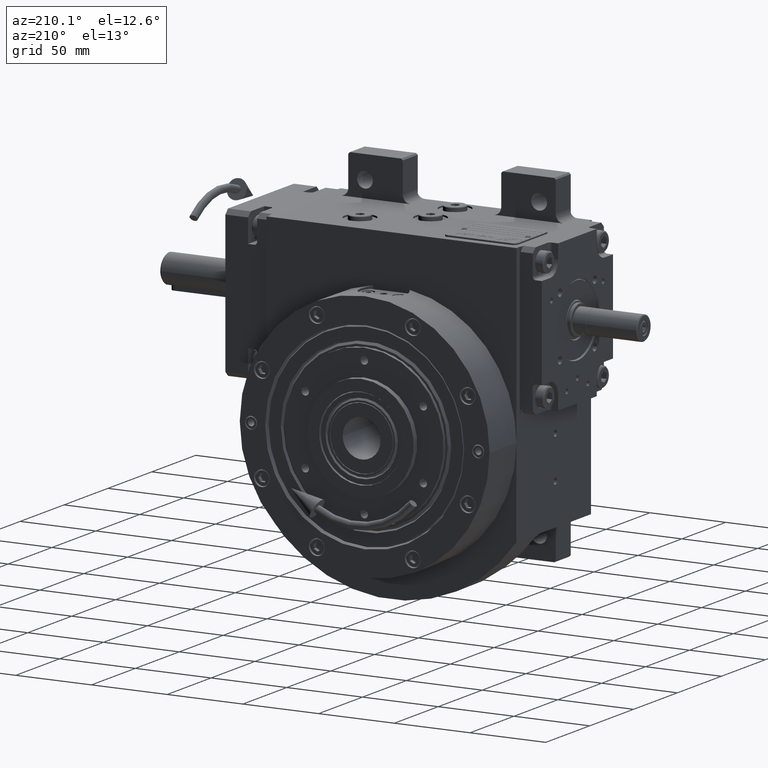
[diagram: clean part render]
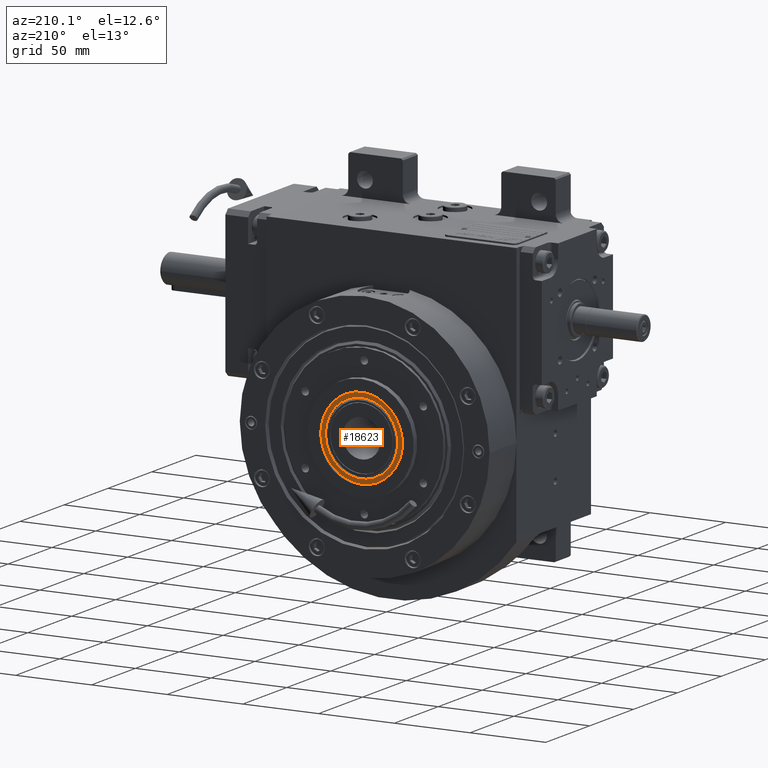
[diagram: same view with one face highlighted and labeled with its STEP entity id]
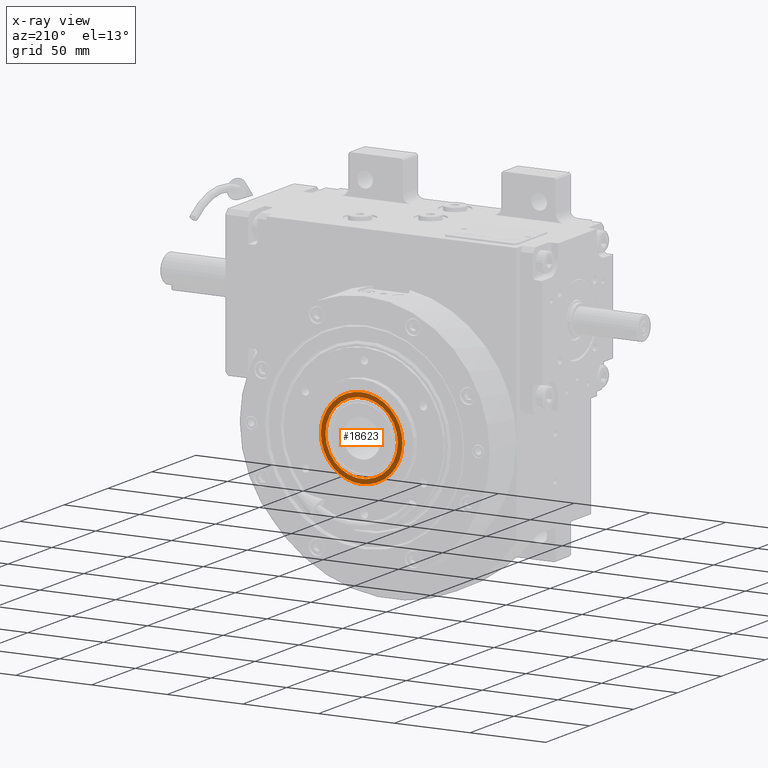
[diagram: x-ray of the same camera — body ghosted, the highlighted face saturated]
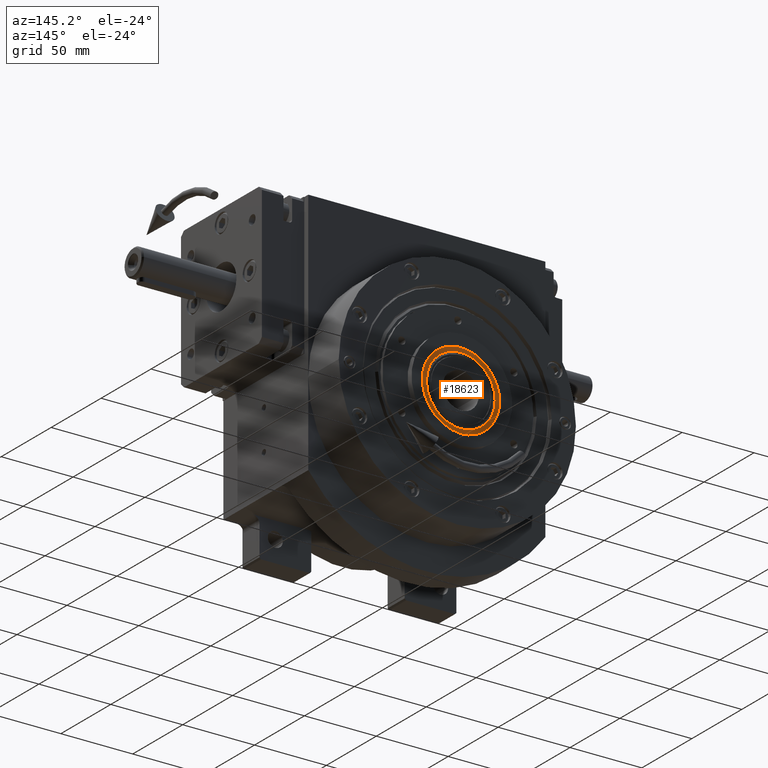
[diagram: same view with one face highlighted and labeled with its STEP entity id]
A machine part, auxiliary view. The second image highlights one B-rep face of the part: STEP entity #18623.
The next image is the same camera in x-ray: the body ghosted, the highlighted face saturated — about 0% of this face is hidden behind the body in this view.
A second angle (auxiliary view) of the same face is appended — the face is thin or edge-on in the first view.
In plain terms, the highlighted planar face has unit normal (0, -1, -0).
Its self-contained STEP definition (entity closure, byte-faithful):
#91 = CARTESIAN_POINT ( 'NONE',  ( 26.92264878653249838, 9.999999454923678144, 2.511382750962018202E-08 ) ) ;
#1124 = EDGE_CURVE ( 'NONE', #49842, #60358, #8411, .T. ) ;
#1700 = FACE_BOUND ( 'NONE', #70833, .T. ) ;
#5562 = CARTESIAN_POINT ( 'NONE',  ( -8.649258139174547457E-07, 9.999999999999992895, 26.92264985321056514 ) ) ;
#6298 = CARTESIAN_POINT ( 'NONE',  ( 15.77092249059400864, 9.999999999999989342, 26.92264986792180892 ) ) ;
#7145 = FACE_OUTER_BOUND ( 'NONE', #69988, .T. ) ;
#8411 = CIRCLE ( 'NONE', #65825, 23.91442286346875079 ) ;
#8720 = CARTESIAN_POINT ( 'NONE',  ( 2.636779683484746784E-13, 9.999999999999996447, -26.92264985321052961 ) ) ;
#9166 = ORIENTED_EDGE ( 'NONE', *, *, #66965, .T. ) ;
#10618 = CARTESIAN_POINT ( 'NONE',  ( 3.552713678800960046E-15, 9.999999999999994671, -3.552456180784535622E-15 ) ) ;
#11060 = CARTESIAN_POINT ( 'NONE',  ( 23.91442286346875079, 10.00000000000000888, -1.513122716316137040E-13 ) ) ;
#12255 = EDGE_CURVE ( 'NONE', #30123, #42931, #43530, .T. ) ;
#13152 = ORIENTED_EDGE ( 'NONE', *, *, #63279, .T. ) ;
#16531 = CARTESIAN_POINT ( 'NONE',  ( -15.77092422044564479, 9.999999999999996447, 26.92264983849932847 ) ) ;
#18623 = ADVANCED_FACE ( 'NONE', ( #7145, #1700 ), #52231, .F. ) ;
#19727 = CARTESIAN_POINT ( 'NONE',  ( 26.92264878653249838, 9.999999454923678144, 2.511382750962018202E-08 ) ) ;
#22377 = DIRECTION ( 'NONE',  ( 1.000000000000000000, 0.000000000000000000, -6.179711783207202425E-15 ) ) ;
#27537 = AXIS2_PLACEMENT_3D ( 'NONE', #27781, #65949, #71813 ) ;
#27781 = CARTESIAN_POINT ( 'NONE',  ( 3.552713678800491857E-15, 9.999999999999994671, 3.552456180784535622E-15 ) ) ;
#30123 = VERTEX_POINT ( 'NONE', #62393 ) ;
#32305 = EDGE_CURVE ( 'NONE', #48052, #30123, #56296, .T. ) ;
#32313 = ORIENTED_EDGE ( 'NONE', *, *, #12255, .T. ) ;
#33729 = CARTESIAN_POINT ( 'NONE',  ( 2.636779683484746784E-13, 9.999999999999996447, -26.92264985321052961 ) ) ;
#33818 =( BOUNDED_CURVE ( )  B_SPLINE_CURVE ( 3, ( #33729, #71885, #67832, #49475 ),
 .UNSPECIFIED., .F., .F. ) 
 B_SPLINE_CURVE_WITH_KNOTS ( ( 4, 4 ),
 ( 1.043506615264754300, 2.614302932183566686 ),
 .UNSPECIFIED. ) 
 CURVE ( )  GEOMETRIC_REPRESENTATION_ITEM ( )  RATIONAL_B_SPLINE_CURVE ( ( 1.000000000000000000, 0.8047378564521803224, 0.8047378564521803224, 1.000000000000000000 ) ) 
 REPRESENTATION_ITEM ( '' )  );
#35749 = CARTESIAN_POINT ( 'NONE',  ( 1.840642670129900720E-15, 9.999999999999994671, 0.000000000000000000 ) ) ;
#36601 = CARTESIAN_POINT ( 'NONE',  ( 26.92265058837881142, 9.999999999999987566, -15.77092345292842346 ) ) ;
#42931 = VERTEX_POINT ( 'NONE', #46739 ) ;
#43530 =( BOUNDED_CURVE ( )  B_SPLINE_CURVE ( 3, ( #19727, #36601, #58987, #8720 ),
 .UNSPECIFIED., .F., .F. ) 
 B_SPLINE_CURVE_WITH_KNOTS ( ( 4, 4 ),
 ( 5.755895541272908922, 7.326691922444340754 ),
 .UNSPECIFIED. ) 
 CURVE ( )  GEOMETRIC_REPRESENTATION_ITEM ( )  RATIONAL_B_SPLINE_CURVE ( ( 1.000000000000000000, 0.8047378413076924364, 0.8047378413076924364, 1.000000000000000000 ) ) 
 REPRESENTATION_ITEM ( '' )  );
#46378 = DIRECTION ( 'NONE',  ( -1.836970198721029688E-16, -1.000000000000000000, 6.392962976191731419E-32 ) ) ;
#46739 = CARTESIAN_POINT ( 'NONE',  ( 2.636779683484746784E-13, 9.999999999999996447, -26.92264985321052961 ) ) ;
#48052 = VERTEX_POINT ( 'NONE', #62493 ) ;
#49475 = CARTESIAN_POINT ( 'NONE',  ( -26.92264878653249838, 9.999999454923663933, -2.511383467721298168E-08 ) ) ;
#49842 = VERTEX_POINT ( 'NONE', #11060 ) ;
#50274 = CARTESIAN_POINT ( 'NONE',  ( 26.92264957505516776, 9.999999999999989342, 15.77092310142724152 ) ) ;
#52231 = PLANE ( 'NONE',  #67610 ) ;
#54924 = ORIENTED_EDGE ( 'NONE', *, *, #1124, .F. ) ;
#55039 = CARTESIAN_POINT ( 'NONE',  ( -26.92264878653249838, 9.999999454923663933, -2.511383467721298168E-08 ) ) ;
#56296 =( BOUNDED_CURVE ( )  B_SPLINE_CURVE ( 3, ( #55039, #66453, #16531, #5562, #6298, #50274, #91 ),
 .UNSPECIFIED., .F., .F. ) 
 B_SPLINE_CURVE_WITH_KNOTS ( ( 4, 3, 4 ),
 ( 2.614302898304860179, 4.185099247349983287, 5.755895596395105507 ),
 .UNSPECIFIED. ) 
 CURVE ( )  GEOMETRIC_REPRESENTATION_ITEM ( )  RATIONAL_B_SPLINE_CURVE ( ( 1.000000000000000000, 0.8047378488799363794, 0.8047378488799363794, 1.000000000000000000, 0.8047378488799364904, 0.8047378488799364904, 1.000000000000000000 ) ) 
 REPRESENTATION_ITEM ( '' )  );
#56463 = DIRECTION ( 'NONE',  ( -1.676329423594664450E-30, 1.000000000000000000, 1.098554938035185162E-30 ) ) ;
#58987 = CARTESIAN_POINT ( 'NONE',  ( 15.77092375724880036, 9.999999999999992895, -26.92265034516085720 ) ) ;
#60358 = VERTEX_POINT ( 'NONE', #64599 ) ;
#62393 = CARTESIAN_POINT ( 'NONE',  ( 26.92264878653249838, 9.999999454923678144, 2.511382750962018202E-08 ) ) ;
#62493 = CARTESIAN_POINT ( 'NONE',  ( -26.92264878653249838, 9.999999454923663933, -2.511383467721298168E-08 ) ) ;
#62716 = ORIENTED_EDGE ( 'NONE', *, *, #32305, .T. ) ;
#63279 = EDGE_CURVE ( 'NONE', #49842, #60358, #72106, .T. ) ;
#64599 = CARTESIAN_POINT ( 'NONE',  ( -23.91442286346870105, 9.999999999999980460, 1.503364896763767500E-13 ) ) ;
#65825 = AXIS2_PLACEMENT_3D ( 'NONE', #10618, #56463, #22377 ) ;
#65949 = DIRECTION ( 'NONE',  ( 1.676329423594664450E-30, -1.000000000000000000, -1.098554938035185162E-30 ) ) ;
#66453 = CARTESIAN_POINT ( 'NONE',  ( -26.92265058837879010, 9.999999999999998224, 15.77092305119992233 ) ) ;
#66965 = EDGE_CURVE ( 'NONE', #42931, #48052, #33818, .T. ) ;
#67610 = AXIS2_PLACEMENT_3D ( 'NONE', #35749, #46378, #68061 ) ;
#67832 = CARTESIAN_POINT ( 'NONE',  ( -26.92264957505513934, 10.00000000000000355, -15.77092269969873151 ) ) ;
#68061 = DIRECTION ( 'NONE',  ( -1.000000000000000000, 1.836970198721029688E-16, 6.328271240363392280E-15 ) ) ;
#69988 = EDGE_LOOP ( 'NONE', ( #32313, #9166, #62716 ) ) ;
#70833 = EDGE_LOOP ( 'NONE', ( #54924, #13152 ) ) ;
#71813 = DIRECTION ( 'NONE',  ( 1.000000000000000000, 0.000000000000000000, -6.476830697519582925E-15 ) ) ;
#71885 = CARTESIAN_POINT ( 'NONE',  ( -15.77092295379084774, 10.00000000000000000, -26.92264936126023045 ) ) ;
#72106 = CIRCLE ( 'NONE', #27537, 23.91442286346875079 ) ;